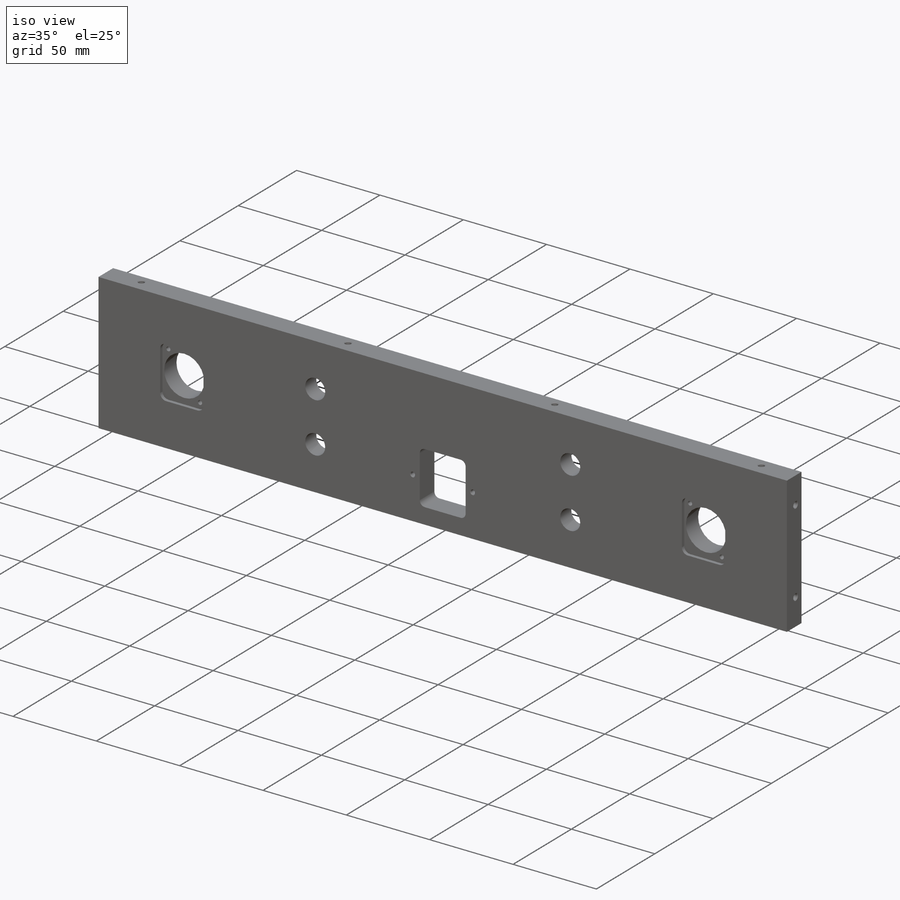
[diagram: iso view]
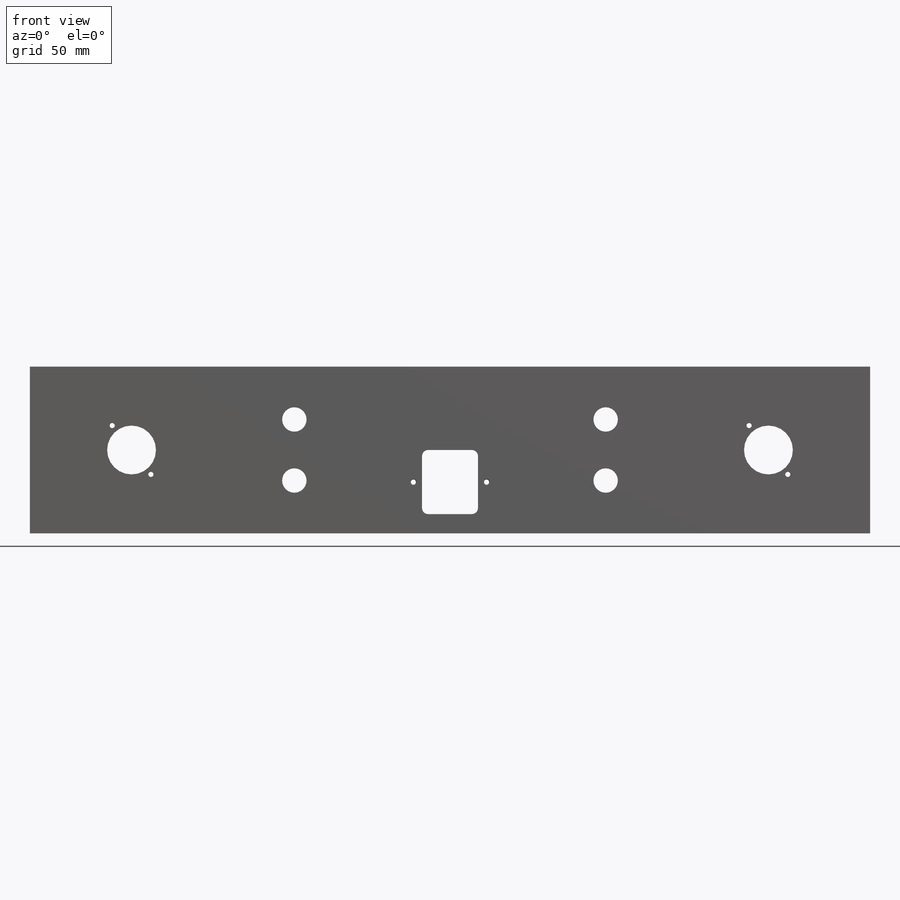
[diagram: front view]
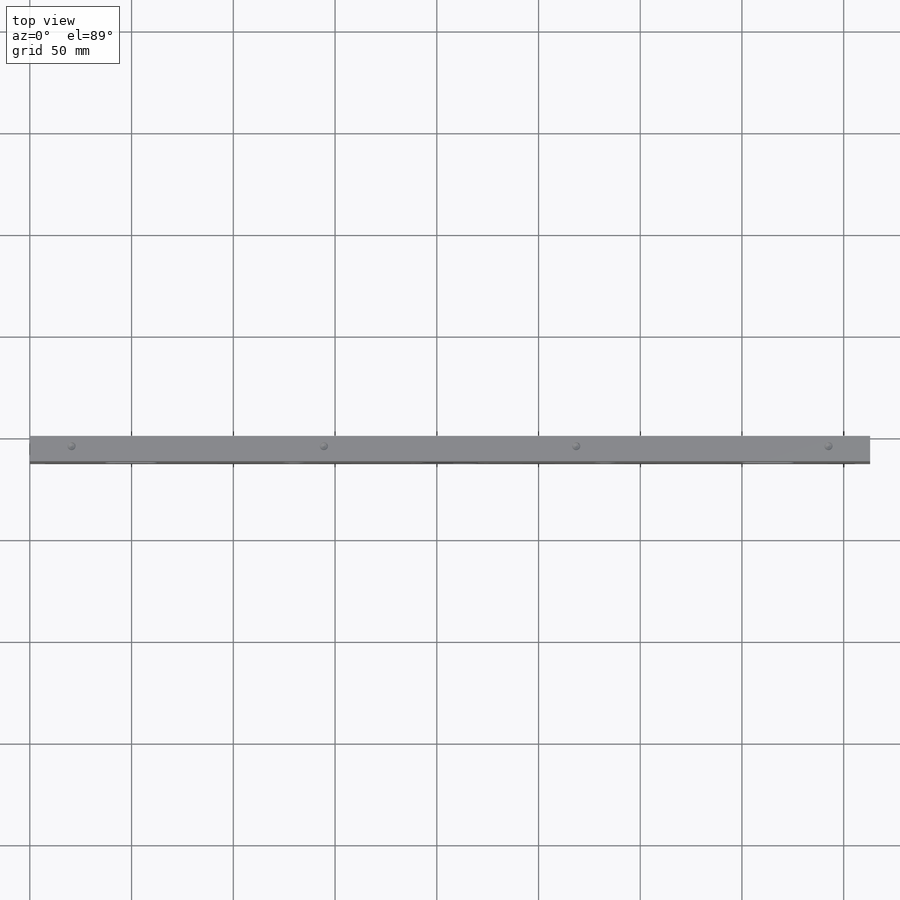
[diagram: top view]
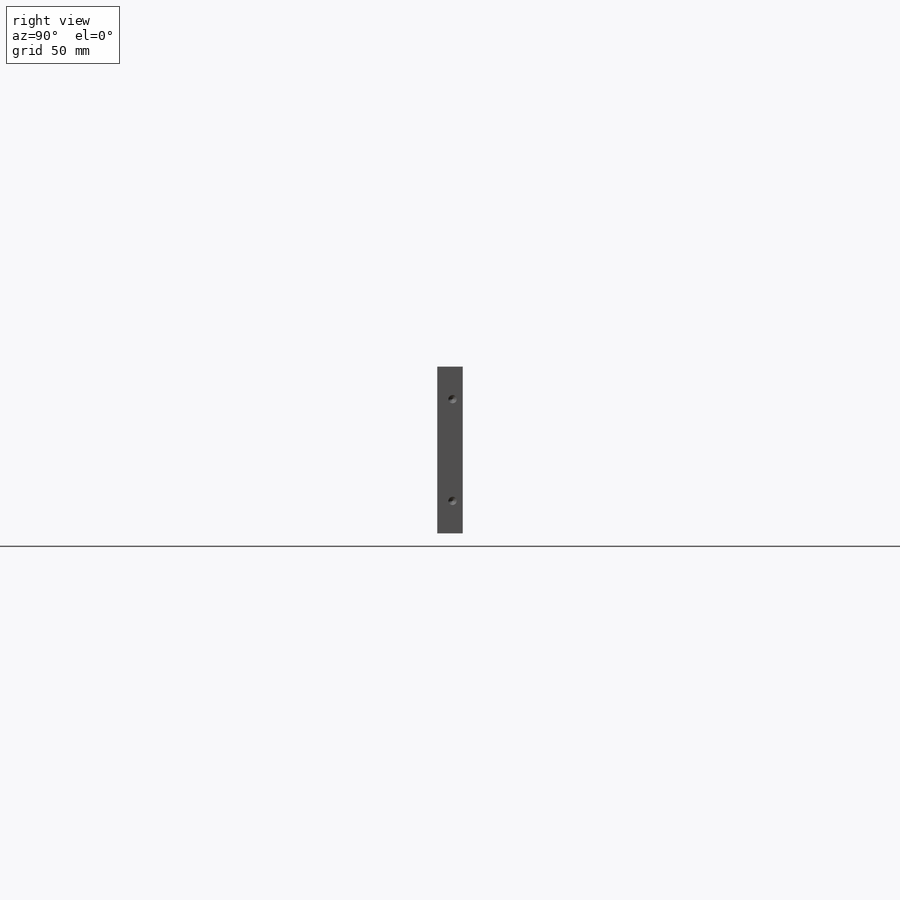
[diagram: right view]
SOLIDWORKS PART (.sldprt)
format: sldprt  version: not decoded by parser v0  size: 668,672 bytes
history: native  units: mm
features: thread x18, sketch x14, hole x5, plane x3, cut_extrude x3, fillet x2, material x1, extrude x1 (+8 scaffold rows collapsed)
feature tree (55):
  scaffold x8  (default folders/planes/origin — collapsed)
  material  "6061 合金"
  plane  "前基準面"
  plane  "上基準面"
  plane  "右基準面"
  sketch  "草圖1"  dims[D1=413.0mm D2=82.0mm]
  extrude  "填料-伸長1"  Depth=12.5mm
  sketch  "草圖2"  dims[c1.D3=12.0mm c1.D4=12.0mm c1.D11=24.0mm c1.D12=24.0mm c1.D1=26.0mm c1.D2=30.0mm c2.D3=30.0mm c2.D5=13.75mm c2.D6=31.5mm c2.D7=41.0mm c2.D8=50.0mm c2.D9=41.0mm c2.D10=130.0mm]
  cut_extrude  "除料-伸長1"  [1 undecoded]
  hole  "M3 螺紋孔1"  [1 undecoded]
  sketch  "草圖4"  dims[c1.D10=24.0mm c1.D1=36.0mm c1.D2=18.0mm c1.D3=15.75mm c1.D4=19.0mm c1.D5=9.5mm c1.D6=24.0mm c1.D7=12.0mm c1.D8=24.0mm c1.D9=~35.12859mm c2.D8=24.0mm c2.D9=19.0mm c2.D10=9.5mm c2.D11=12.0mm c2.D4=19.0mm c2.D5=24.0mm c2.D6=9.5mm c2.D7=~16.162343mm c3.D6=12.0mm c3.D7=19.0mm c3.D8=9.5mm c3.D9=24.0mm c3.D10=12.0mm]
  sketch  "草圖3"  dims[hole-wizard template sketch: 54 standard entries collapsed; hole parameters kept: c17.貫穿螺孔鑽直徑=2.5mm c17.貫穿螺孔鑽深度=12.5mm c17.近端錐孔直徑=3.05mm c17.D4=~3.666174mm c17.近端錐孔角度=90.0deg]
  thread  "鑽孔螺紋1"  Diameter=3mm  [1 undecoded]
  thread  "鑽孔螺紋2"  Diameter=3mm  [1 undecoded]
  thread  "鑽孔螺紋3"  Diameter=3mm  [1 undecoded]
  thread  "鑽孔螺紋4"  Diameter=3mm  [1 undecoded]
  thread  "鑽孔螺紋5"  Diameter=3mm  [1 undecoded]
  thread  "鑽孔螺紋6"  Diameter=3mm  [1 undecoded]
  fillet  "圓角1"  Radius=3mm
  hole  "M4 螺紋孔1"  [1 undecoded]
  sketch  "草圖6"  dims[D1=124.0mm D2=124.0mm D3=20.5mm D4=124.0mm D5=7.5mm]
  sketch  "草圖5"  dims[hole-wizard template sketch: 39 standard entries collapsed; hole parameters kept: c13.螺孔鑽直徑=3.3mm c13.螺孔鑽深度=5.0mm c13.近端錐孔直徑=4.05mm c13.D4=~33.297463mm c13.近端錐孔角度=90.0deg c14.D5=~14.816244mm c14.導頭角度=118.0deg]
  thread  "鑽孔螺紋7"  Diameter=5mm  [1 undecoded]
  thread  "鑽孔螺紋8"  Diameter=5mm  [1 undecoded]
  thread  "鑽孔螺紋9"  Diameter=5mm  [1 undecoded]
  thread  "鑽孔螺紋10"  Diameter=5mm  [1 undecoded]
  hole  "M4 螺紋孔2"  [1 undecoded]
  sketch  "草圖8"  dims[D1=20.5mm D2=124.0mm D3=124.0mm D4=124.0mm D5=7.5mm]
  sketch  "草圖7"  dims[hole-wizard template sketch: 39 standard entries collapsed; hole parameters kept: c13.螺孔鑽直徑=3.3mm c13.螺孔鑽深度=5.0mm c13.近端錐孔直徑=4.05mm c13.D4=~33.297463mm c13.近端錐孔角度=90.0deg c14.D5=~14.816244mm c14.導頭角度=118.0deg]
  thread  "鑽孔螺紋11"  Diameter=5mm  [1 undecoded]
  thread  "鑽孔螺紋12"  Diameter=5mm  [1 undecoded]
  thread  "鑽孔螺紋13"  Diameter=5mm  [1 undecoded]
  thread  "鑽孔螺紋14"  Diameter=5mm  [1 undecoded]
  hole  "M4 螺紋孔3"  [1 undecoded]
  sketch  "草圖12"  dims[D1=50.0mm D2=16.0mm D3=7.5mm]
  sketch  "草圖11"  dims[hole-wizard template sketch: 39 standard entries collapsed; hole parameters kept: c13.螺孔鑽直徑=3.3mm c13.螺孔鑽深度=10.1mm c13.近端錐孔直徑=4.05mm c13.D4=~33.297463mm c13.近端錐孔角度=90.0deg c14.D5=~14.816244mm c14.導頭角度=118.0deg]
  thread  "鑽孔螺紋15"  Diameter=8mm  [1 undecoded]
  thread  "鑽孔螺紋16"  Diameter=8mm  [1 undecoded]
  hole  "M4 螺紋孔4"  [1 undecoded]
  sketch  "草圖14"  dims[D1=16.0mm D2=50.0mm D3=7.5mm]
  sketch  "草圖13"  dims[hole-wizard template sketch: 39 standard entries collapsed; hole parameters kept: c13.螺孔鑽直徑=3.3mm c13.螺孔鑽深度=10.1mm c13.近端錐孔直徑=4.05mm c13.D4=~33.297463mm c13.近端錐孔角度=90.0deg c14.D5=~14.816244mm c14.導頭角度=118.0deg]
  thread  "鑽孔螺紋17"  Diameter=8mm  [1 undecoded]
  thread  "鑽孔螺紋18"  Diameter=8mm  [1 undecoded]
  sketch  "草圖15"  dims[D1=25.0mm D2=25.0mm D3=25.0mm D4=25.0mm]
  cut_extrude  "除料-伸長2"  Depth=3mm
  sketch  "草圖16"  dims[c1.D1=~18.338166mm c1.D2=26.0mm c1.D3=~36.676333mm c2.D1=31.0mm c2.D3=26.0mm c2.D4=31.0mm]
  cut_extrude  "除料-伸長3"  Depth=2mm
  fillet  "圓角2"  Radius=3.5mm
decode coverage: 37 of 43 modeling features carry decoded parameters
note: ~ marks probable driven/reference dimensions
note: 24 parameter values undecoded
summary: no parameter record found for 6 features
note: suppression state not decoded; provenance and decode notes live in map.json
